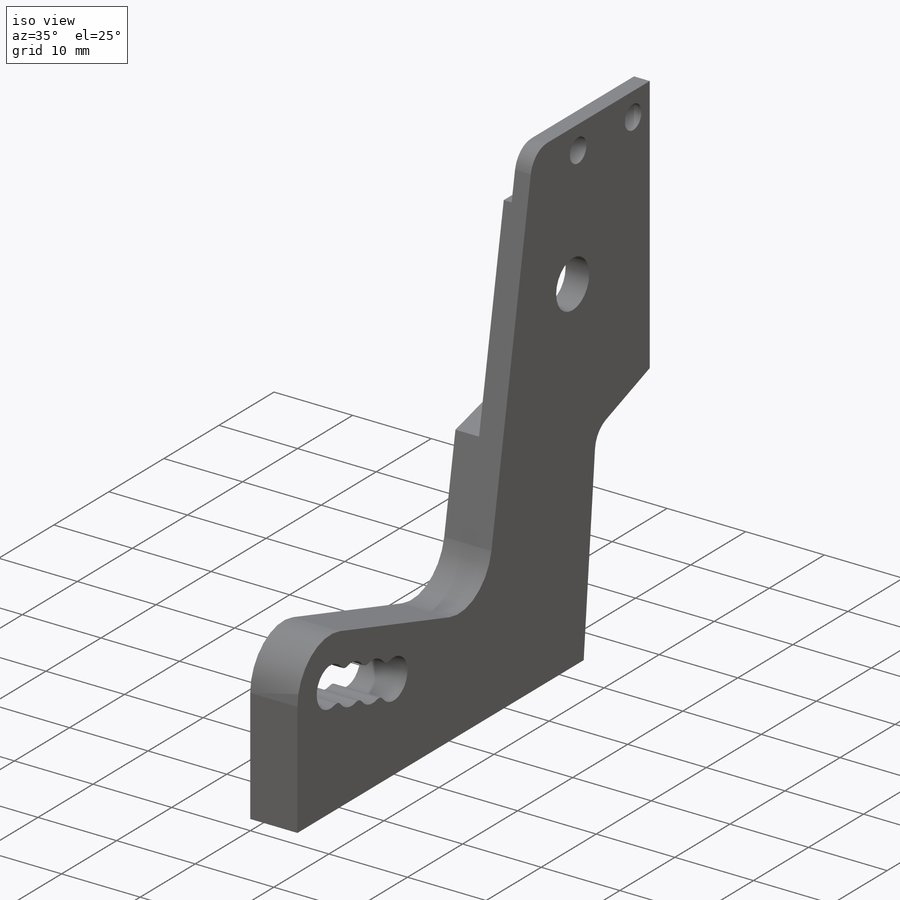
[diagram: iso view]
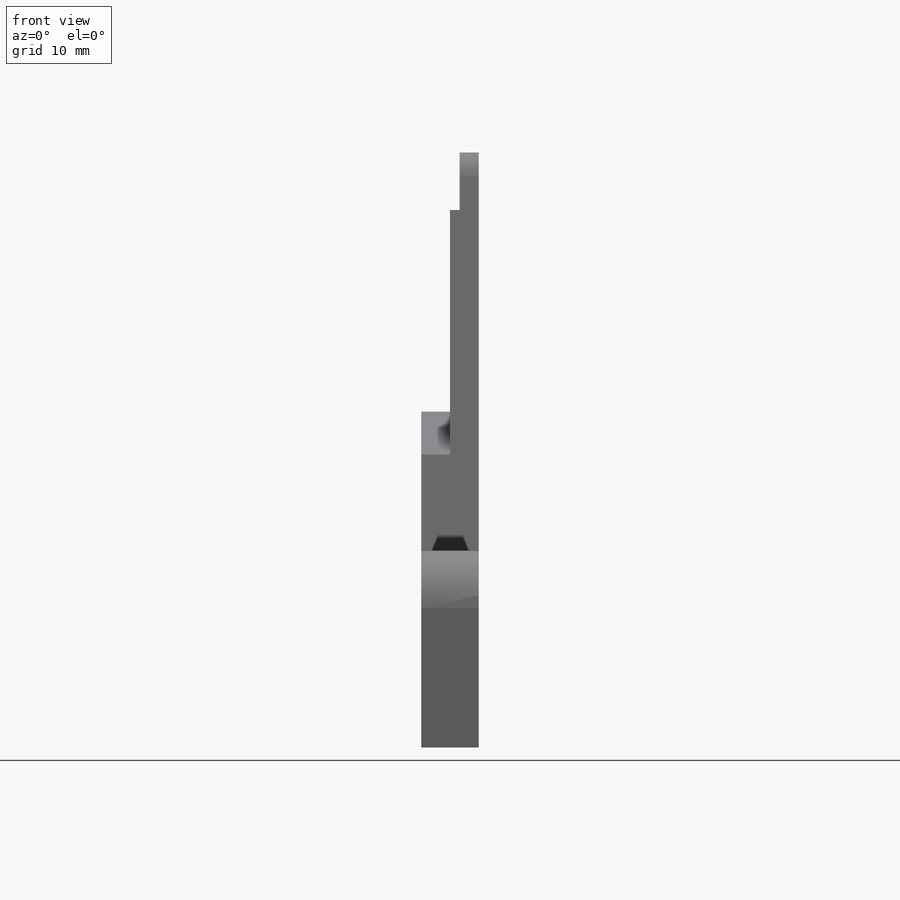
[diagram: front view]
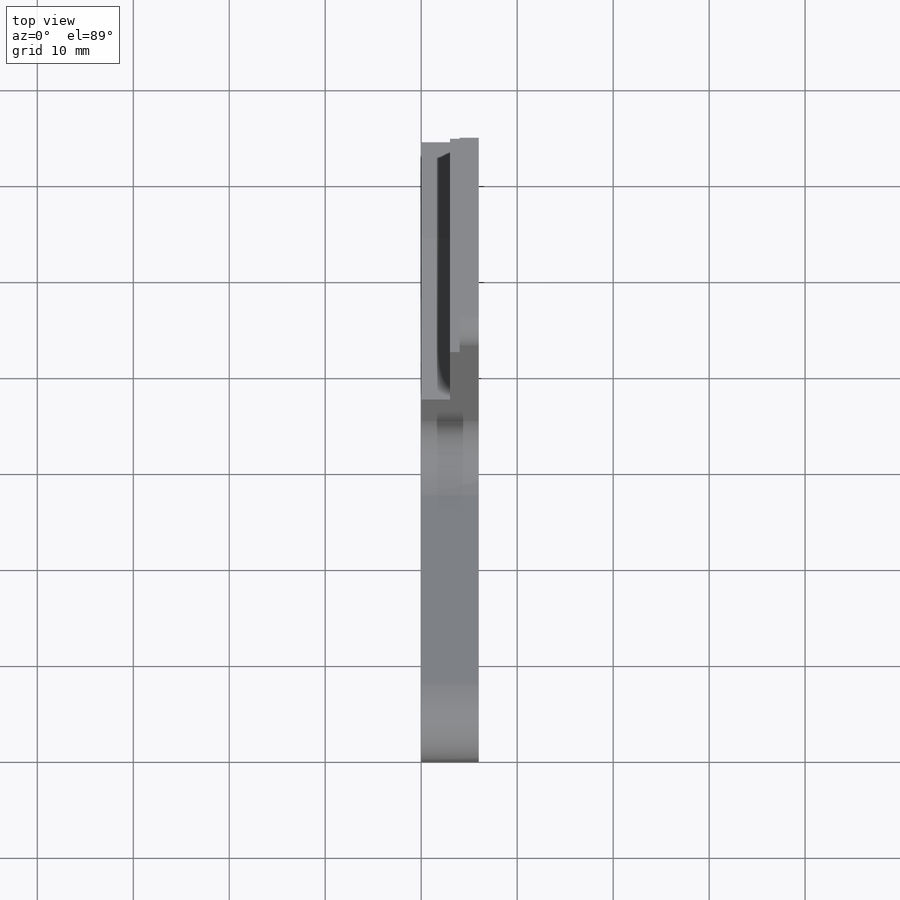
[diagram: top view]
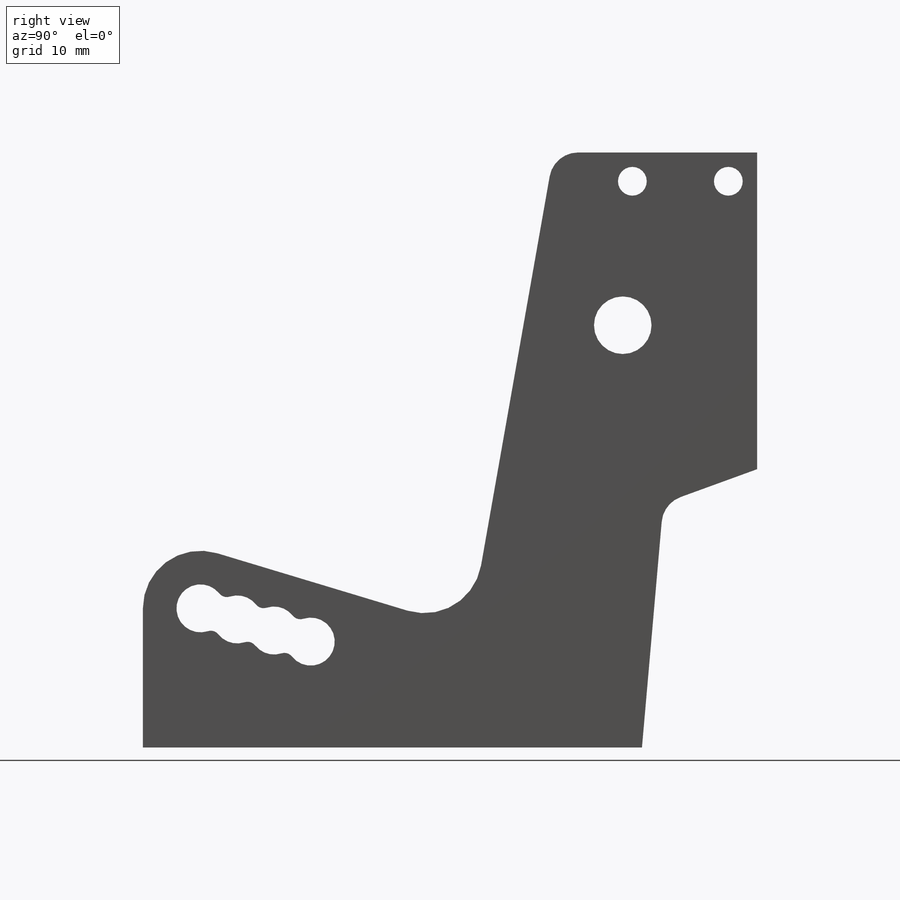
[diagram: right view]
SOLIDWORKS PART (.sldprt)
format: sldprt  version: not decoded by parser v0  size: 420,864 bytes
history: native  units: mm
features: sketch x9, cut_extrude x6, fillet x3, material x1, extrude x1, hole x1, pattern_linear x1 (+11 scaffold rows collapsed)
feature tree (33):
  scaffold x11  (default folders/planes/origin — collapsed)
  material  "1060 Alloy"
  sketch  "Sketch1"  dims[c1.D1=6.0mm c1.D2=5.0mm c1.D3=14.5mm c1.D4=6.0mm c1.D5=44.0mm c1.D6=10.0mm c1.D7=64.0mm c1.D8=62.0mm c2.D6=50.0mm c2.D9=35.0mm]
  extrude  "Boss-Extrude1"  Depth=6mm
  sketch  "Sketch2"  dims[c1.D2=10.0mm c1.D4=3.0mm c1.D1=1.0mm c1.D3=40.0mm c2.D4=~36.672772mm c2.D3=43.0mm c3.D4=45.0mm c4.D4=80.0deg c4.D5=20.0mm]
  cut_extrude  "Cut-Extrude1"  [1 undecoded]
  sketch  "Sketch3"  dims[c1.D1=8.0mm c1.D2=8.0mm c1.D3=10.0mm c1.D4=8.0mm c1.D5=~3.103646mm c2.D4=3.0mm c2.D5=5.5mm c2.D6=8.0mm c2.D7=3.0mm c2.D8=2.1mm c2.D9=3.0mm c2.D10=3.0mm c2.D11=3.0mm c2.D12=3.0mm c2.D13=5.0mm c2.D14=10.0mm c2.D15=3.0mm c2.D16=5.5mm c2.D17=9.0mm c2.D18=3.0mm c2.D19=3.0mm c2.D20=2.1mm c3.D19=5.0mm c3.D21=8.0mm c3.D22=8.0mm c3.D23=3.0mm c3.D3=12.0mm c4.D23=5.0mm c4.D12=3.0mm c4.D13=5.0mm c4.D14=5.0mm c4.D15=15.0mm c4.D2=4.0mm c4.D1=29.0mm c5.D2=55.0mm c5.D1=55.0mm c6.D2=~8.461726mm c7.D2=60.0deg c7.D3=~24.825501mm c8.D3=85.0deg c8.D1=52.0mm c8.D2=29.0mm c9.D3=28.0mm c10.D3=70.0deg c10.D4=~24.328607mm c11.D4=85.0deg]
  cut_extrude  "Cut-Extrude2"  [1 undecoded]
  fillet  "Fillet1"  Radius=3mm
  fillet  "Fillet2"  Radius=3mm
  hole  "Tap Drill for M3 Tap1"  Diameter=2.5mm Depth=9mm
  sketch  "Sketch5"  dims[c1.D1=4.0mm c1.D2=12.0mm c1.D3=36.0mm c2.D1=3.0mm]
  sketch  "Sketch4"  dims[hole-wizard template sketch: 47 standard entries collapsed; hole parameters kept: c15.Hole Depth=9.0mm c15.D3=~14.816244mm c15.Drill Angle=118.0deg]
  sketch  "Sketch9"  dims[c1.D1=15.9mm c1.D2=11.0mm c1.D3=7.1mm c1.D4=6.0mm c1.D5=15.9mm c1.D6=15.9mm c1.D8=12.5mm c1.D9=1.5mm c1.D14=8.0mm c2.D1=6.5mm c2.D5=26.0mm c2.D6=26.0mm c2.D7=22.0mm c2.D10=12.0mm c2.D11=25.0mm c2.D12=25.0mm c2.D13=30.0mm c2.D14=5.0mm c2.D15=7.0mm c2.D16=4.0mm c2.D17=~0.766011mm c2.D2=3.5mm c2.D3=~3.584223mm c3.D3=45.0deg c3.D4=6.0mm c3.D5=~7.064985mm c4.D5=65.0deg c4.D1=10.0mm c4.D2=27.0mm]
  cut_extrude  "Cut-Extrude3"  Depth=3mm
  sketch  "Sketch10"  dims[D1=3.0mm D2=3.0mm D3=3.0mm D4=10.0mm]
  cut_extrude  "Cut-Extrude4"  [1 undecoded]
  sketch  "Sketch11"  dims[D1=4.0mm]
  cut_extrude  "Cut-Extrude5"  [1 undecoded]
  pattern_linear  "LPattern1"  Count1=3 Count2=1 Spacing1=4mm Spacing2=10mm
  fillet  "Fillet3"  Radius=1mm
  sketch  "Sketch12"  dims[D1=6.0mm]
  cut_extrude  "Cut-Extrude6"  Depth=1mm
decode coverage: 17 of 21 modeling features carry decoded parameters
note: ~ marks probable driven/reference dimensions
note: 4 parameter values undecoded
summary: no parameter record found for 4 features
note: suppression state not decoded; provenance and decode notes live in map.json
